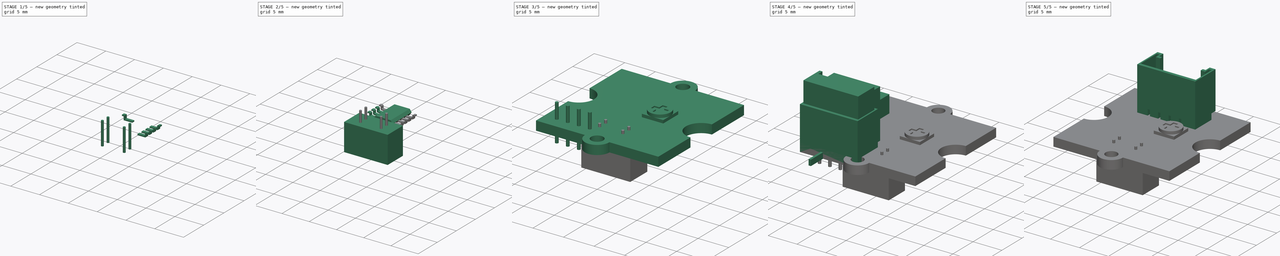
[diagram: build sequence overview — one tinted view per stage of 5, left to right]
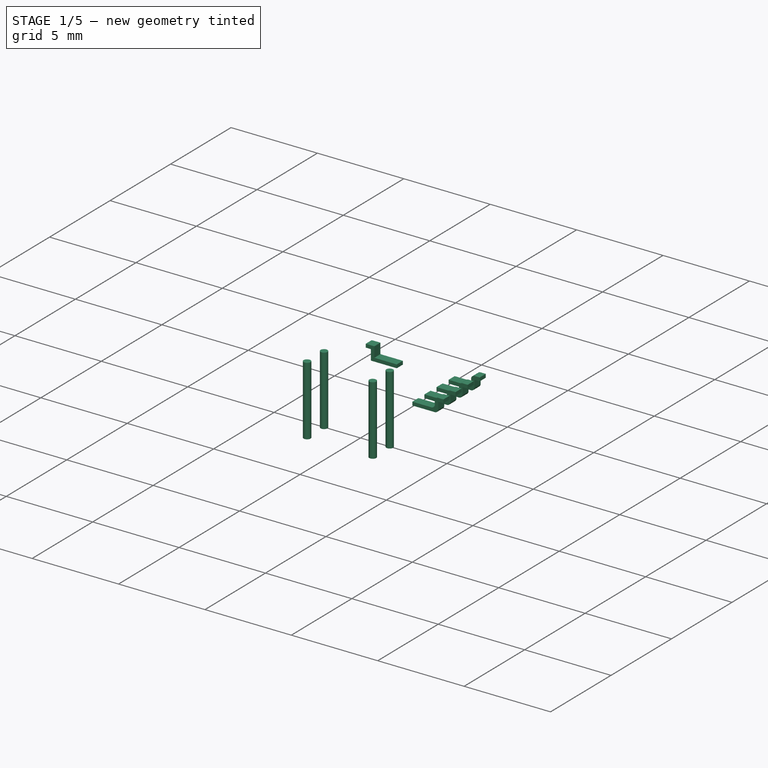
[diagram: stage 1 of 5 — iso view after this stage's code; geometry added in this stage tinted green]
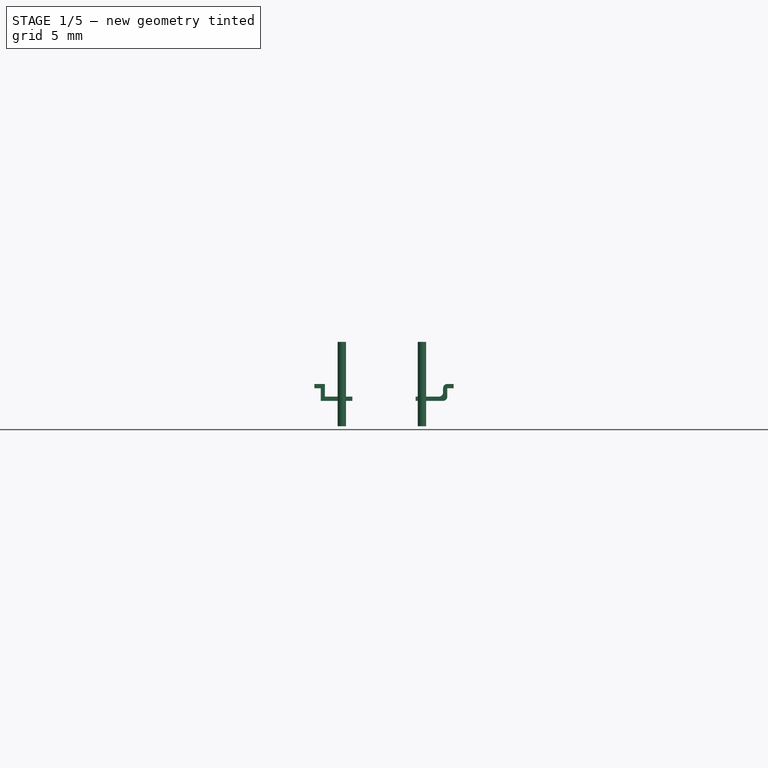
[diagram: stage 1 of 5 — front view after this stage's code; geometry added in this stage tinted green]
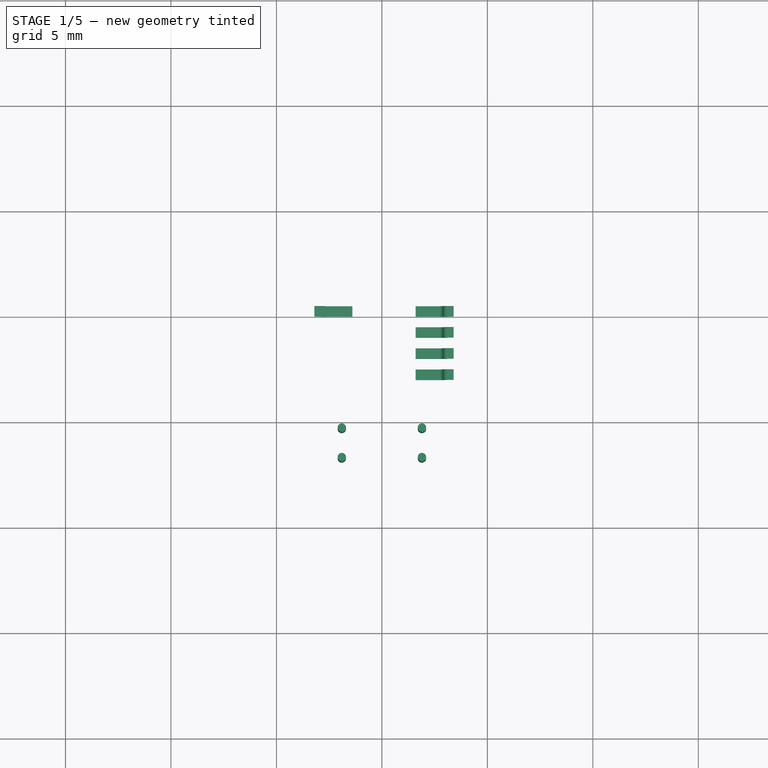
[diagram: stage 1 of 5 — top view after this stage's code; geometry added in this stage tinted green]
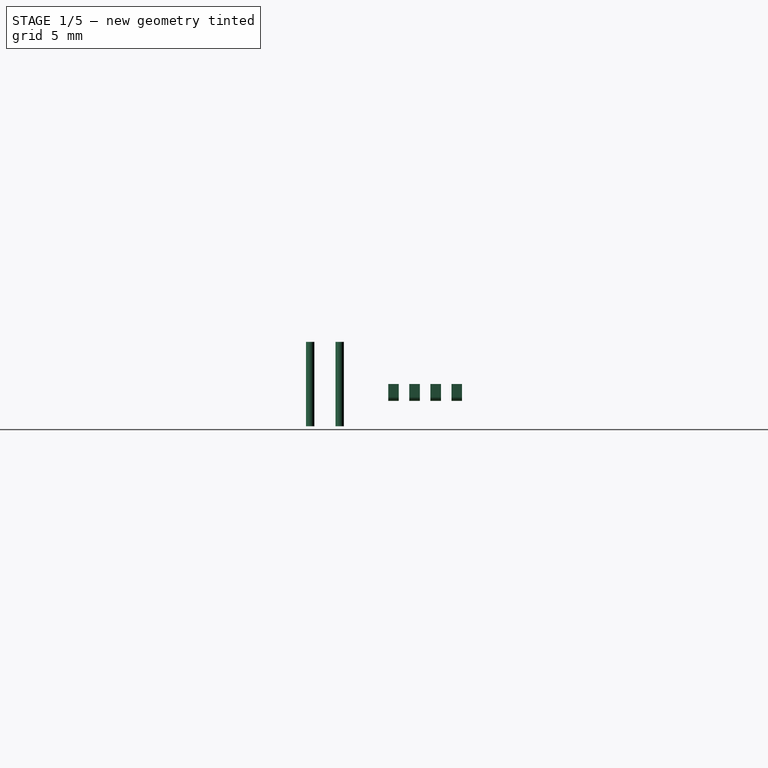
[diagram: stage 1 of 5 — right view after this stage's code; geometry added in this stage tinted green]
FCSTD DOCUMENT  (FreeCAD 0.14R3700 (Git))
Label: LineFinder
License: CC-BY 3.0
LicenseURL: http://creativecommons.org/licenses/by/3.0/
objects: Part::Box×19, Part::Cut×11, Part::Cylinder×7, Sketcher::SketchObject×6, Part::MultiFuse×6, PartDesign::Pad×3, PartDesign::Pocket×3, Part::FeaturePython×3, Part::Sphere×2, Part::Fillet×2
note: 68 computed .brp shape members not serialized (recipe doc carries the construction recipe); baked Part::Feature solids carry a one-line shape summary decoded from their .brp

FEATURE [Part::Box] Box016  label="Cubo016"
  Height = 0.2
  Length = 1.5
  Placement = pos=(7.1,10,-0.8) rot=(0,0,1;0rad)
  Width = 0.5
FEATURE [Part::Box] Box017  label="Cubo017"
  Height = 0.4
  Length = 0.2
  Placement = pos=(7.1,10,-0.6) rot=(0,0,1;0rad)
  Width = 0.5
FEATURE [Part::Box] Box018  label="Cubo018"
  Height = 0.5
  Length = 0.2
  Placement = pos=(6.8,10,0) rot=(0,1,0;1.5708rad)
  Width = 0.5
FEATURE [Part::MultiFuse] Fusion004
  Shapes = -> [Box016,Box017,Box018]
FEATURE [Part::MultiFuse] Fusion005
  Shapes = -> [Box016,Box017,Box018]
FEATURE [Part::Fillet] Fillet001
  Base = -> Fusion005
  Edges = 3 edges r=0.2: [Edge5,Edge8,Edge21]
  Placement = pos=(20.2,20.5,0) rot=(0,0,1;3.14159rad)
FEATURE [Part::FeaturePython] Array002  # Draft array (typed FeaturePython)
  Angle = 360
  ArrayType = 0
  Axis = (0,0,1)
  Base = -> Fillet001
  Center = (0,0,0)
  IntervalX = (1,0,0)
  IntervalY = (0,-1,0)
  IntervalZ = (0,0,1)
  NumberPolar = 1
  NumberX = 1
  NumberY = 4
  NumberZ = 1
FEATURE [Part::Cylinder] Cylinder003  label="Cilindro003"
  Angle = 360
  Height = 4
  Placement = pos=(8.1,4.7,-2) rot=(0,0,1;0rad)
  Radius = 0.2
FEATURE [Part::Cylinder] Cylinder004  label="Cilindro004"
  Angle = 360
  Height = 4
  Placement = pos=(11.9,4.7,-2) rot=(0,0,1;0rad)
  Radius = 0.2
FEATURE [Part::Cylinder] Cylinder005  label="Cilindro005"
  Angle = 360
  Height = 4
  Placement = pos=(8.1,3.3,-2) rot=(0,0,1;0rad)
  Radius = 0.2
FEATURE [Part::Cylinder] Cylinder006  label="Cilindro006"
  Angle = 360
  Height = 4
  Placement = pos=(11.9,3.3,-2) rot=(0,0,1;0rad)
  Radius = 0.2
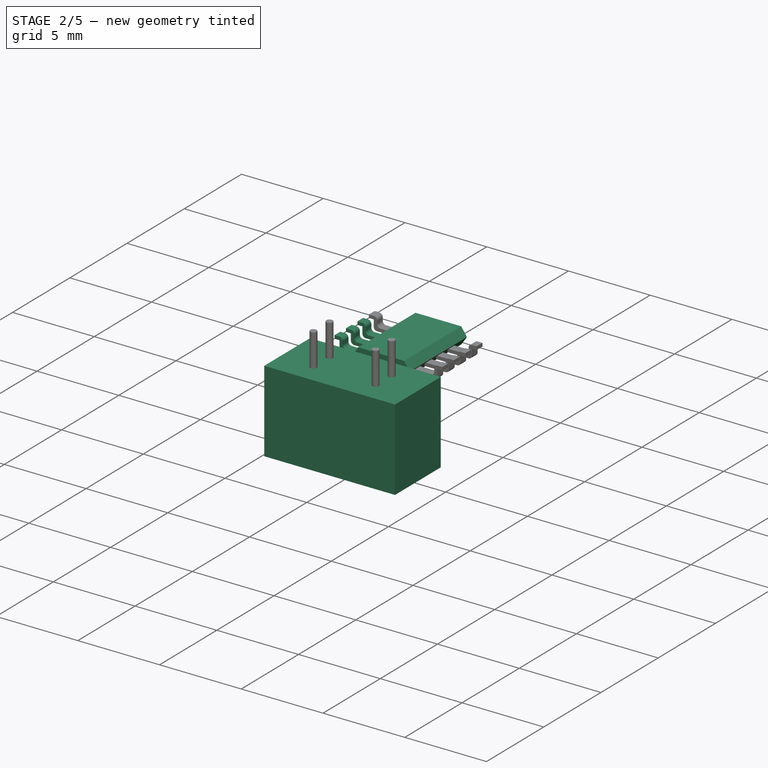
[diagram: stage 2 of 5 — iso view after this stage's code; geometry added in this stage tinted green]
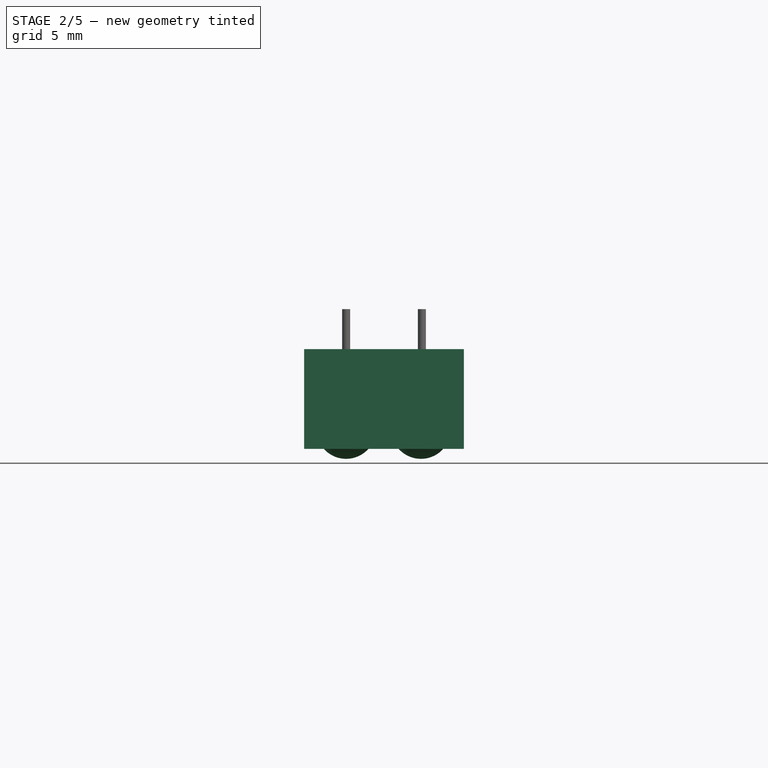
[diagram: stage 2 of 5 — front view after this stage's code; geometry added in this stage tinted green]
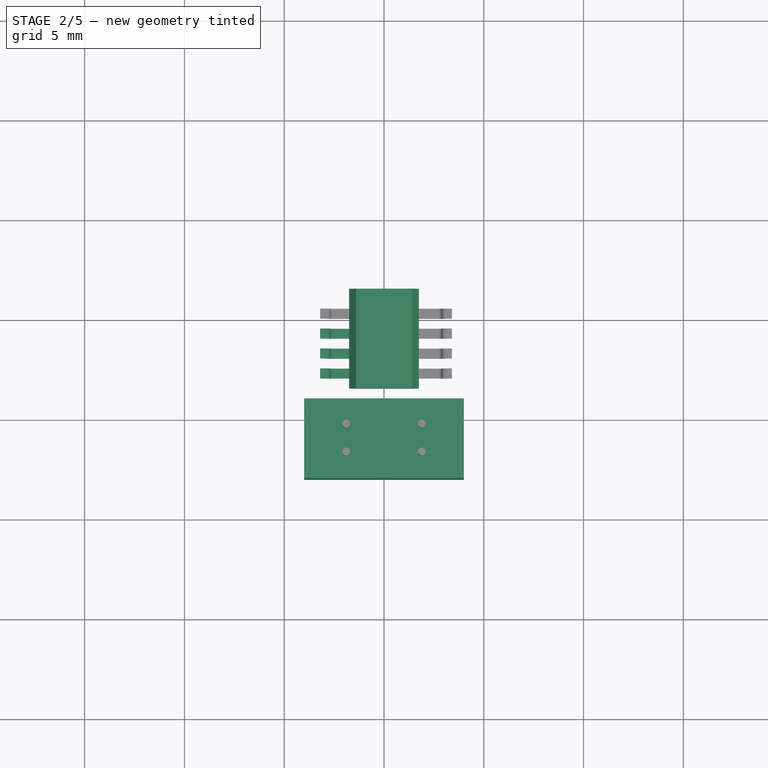
[diagram: stage 2 of 5 — top view after this stage's code; geometry added in this stage tinted green]
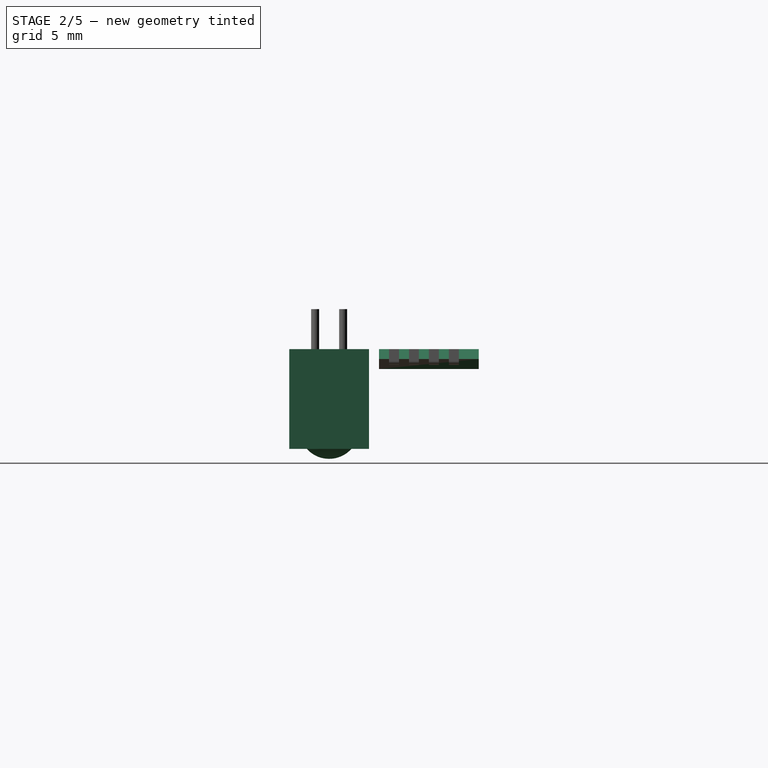
[diagram: stage 2 of 5 — right view after this stage's code; geometry added in this stage tinted green]
FEATURE [Part::Box] Box013  label="Cubo013"
  Height = 5
  Length = 8
  Placement = pos=(6,2,-5) rot=(0,0,1;0rad)
  Width = 4
FEATURE [Part::Box] Box014  label="Cubo014"
  Height = 4
  Length = 3.25
  Placement = pos=(6.5,2.5,-5) rot=(0,0,1;0rad)
  Width = 3
FEATURE [Part::Sphere] Sphere  label="Esféra"
  Angle1 = -90
  Angle2 = 90
  Angle3 = 360
  Radius = 1.5
FEATURE [Part::Cylinder] Cylinder001  label="Cilindro001"
  Angle = 360
  Height = 2.5
  Radius = 1.5
FEATURE [Part::MultiFuse] Fusion002  label="LED IR"
  Placement = pos=(8.1,4,-4) rot=(0,0,1;0rad)
  Shapes = -> [Sphere,Cylinder001]
FEATURE [Part::Cylinder] Cylinder002  label="Cilindro002"
  Angle = 360
  Height = 2.5
  Radius = 1.5
FEATURE [Part::Sphere] Sphere001  label="Esféra001"
  Angle1 = -90
  Angle2 = 90
  Angle3 = 360
  Radius = 1.5
FEATURE [Part::MultiFuse] Fusion003  label="IR PHOTO"
  Placement = pos=(11.85,4,-4) rot=(0,0,1;0rad)
  Shapes = -> [Sphere001,Cylinder002]
FEATURE [Sketcher::SketchObject] Sketch005
  Placement = pos=(8.25,11.5,-0.5) rot=(1,0,0;1.5708rad)
  sketch-geometry (8):
    g0: LineSegment StartX=0 StartY=0 StartZ=0 EndX=3.5 EndY=0 EndZ=0
    g1: LineSegment StartX=3.5 StartY=0 StartZ=0 EndX=3.15 EndY=0.5 EndZ=0
    g2: LineSegment StartX=3.15 StartY=0.5 StartZ=0 EndX=0.35 EndY=0.5 EndZ=0
    g3: LineSegment StartX=0.35 StartY=0.5 StartZ=0 EndX=0 EndY=0 EndZ=0
    g4: LineSegment [constr] StartX=0.35 StartY=0.5 StartZ=0 EndX=0.35 EndY=0 EndZ=0
    g5: LineSegment StartX=0 StartY=0 StartZ=0 EndX=0.35 EndY=-0.5 EndZ=0
    g6: LineSegment StartX=0.35 StartY=-0.5 StartZ=0 EndX=3.15 EndY=-0.5 EndZ=0
    g7: LineSegment StartX=3.15 StartY=-0.5 StartZ=0 EndX=3.5 EndY=0 EndZ=0
  constraints (22):
    c: Coincident(g-1,g0)
    c: Horizontal(g0)
    c: Coincident(g0,g1)
    c: Coincident(g1,g2)
    c: Horizontal(g2)
    c: Coincident(g2,g3)
    c: Coincident(g3,g-1)
    c: DistanceX(g2) = -2.8
    c: DistanceX(g0) = 3.5
    c: Coincident(g4,g2)
    c: PointOnObject(g4,g0)
    c: Vertical(g4)
    c: DistanceY(g4) = -0.5
    c: Equal(g3,g1)
    c: Coincident(g-1,g5)
    c: Coincident(g5,g6)
    c: Horizontal(g6)
    c: Coincident(g6,g7)
    c: Coincident(g7,g0)
    c: Equal(g6,g2)
    c: Equal(g7,g5)
    c: Equal(g5,g3)
FEATURE [PartDesign::Pad] Pad002
  Length = 5
  Length2 = 100
  Placement = pos=(8.25,11.5,-0.5) rot=(1,0,0;1.5708rad)
  Sketch = -> Sketch005
  Type = 0
FEATURE [Part::Fillet] Fillet
  Base = -> Fusion004
  Edges = 3 edges r=0.2: [Edge5,Edge8,Edge21]
FEATURE [Part::FeaturePython] Array001  # Draft array (typed FeaturePython)
  Angle = 360
  ArrayType = 0
  Axis = (0,0,1)
  Base = -> Fillet
  Center = (0,0,0)
  IntervalX = (5,0,0)
  IntervalY = (0,-1,0)
  IntervalZ = (0,0,1)
  NumberPolar = 1
  NumberX = 1
  NumberY = 4
  NumberZ = 1
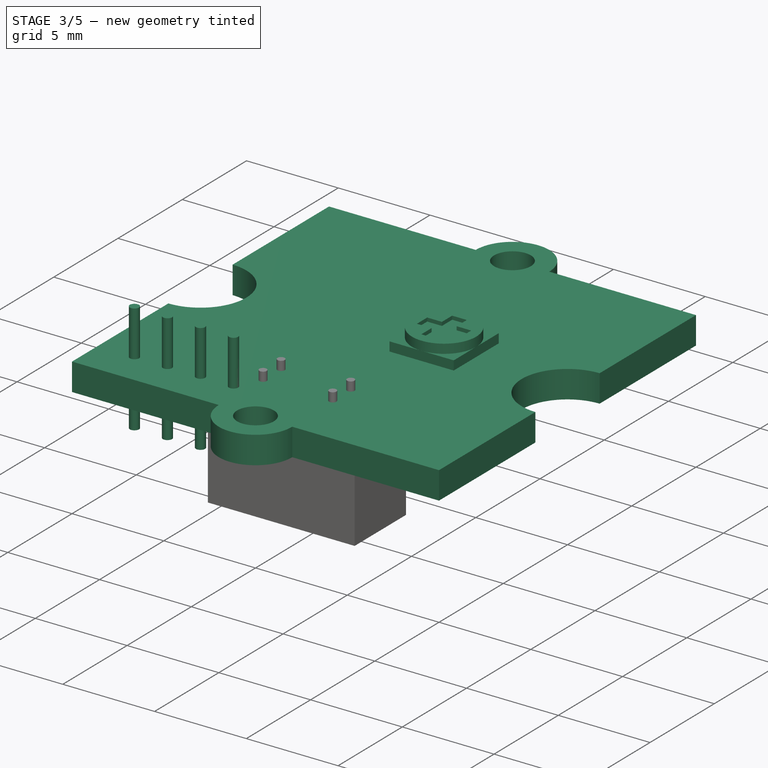
[diagram: stage 3 of 5 — iso view after this stage's code; geometry added in this stage tinted green]
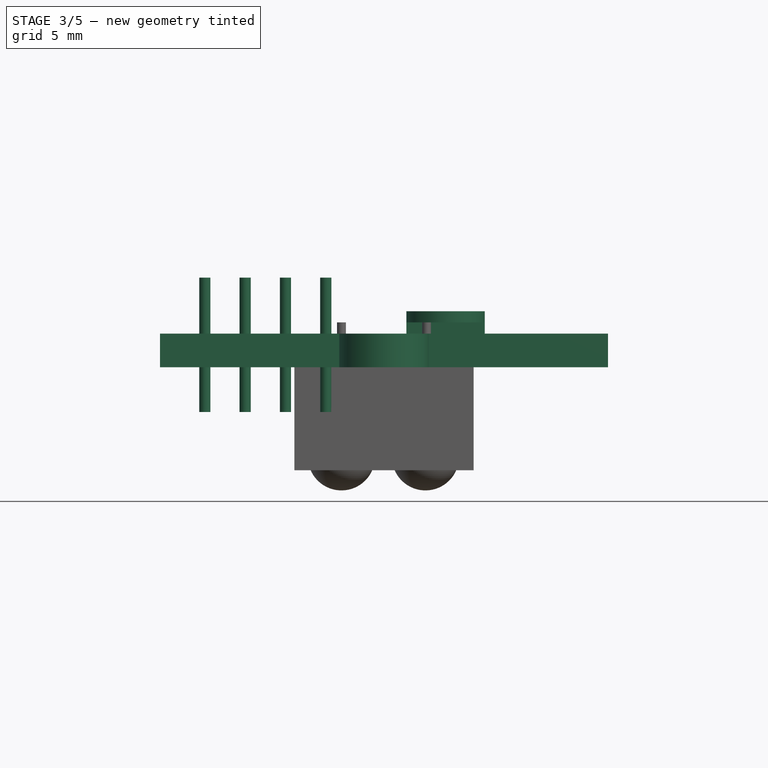
[diagram: stage 3 of 5 — front view after this stage's code; geometry added in this stage tinted green]
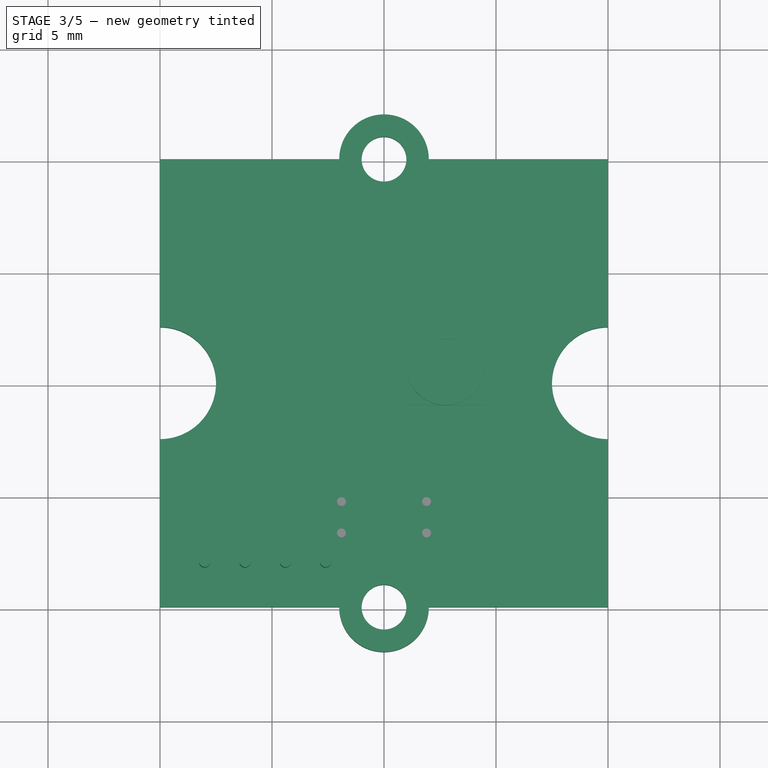
[diagram: stage 3 of 5 — top view after this stage's code; geometry added in this stage tinted green]
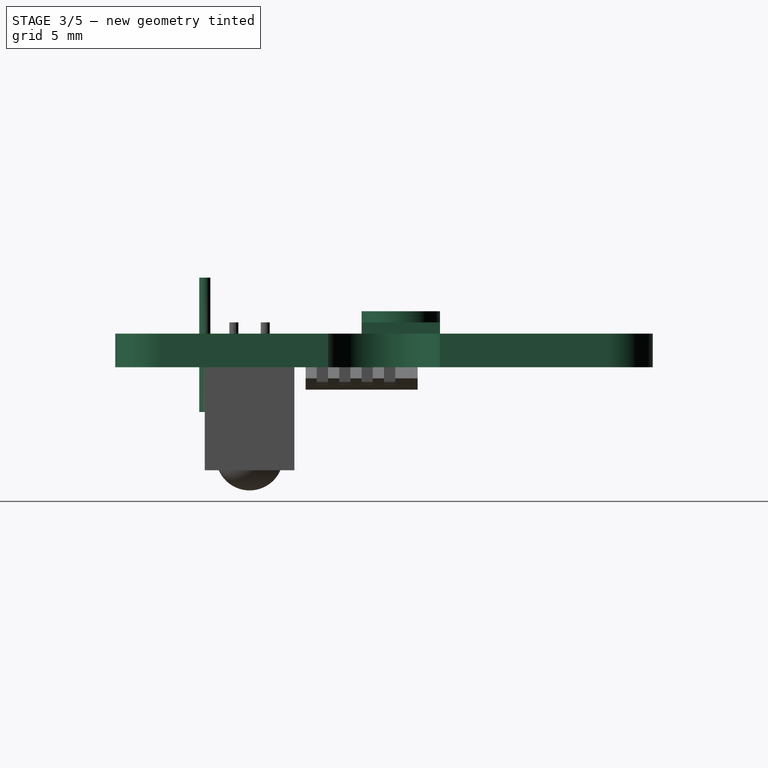
[diagram: stage 3 of 5 — right view after this stage's code; geometry added in this stage tinted green]
FEATURE [Part::Box] Box  label="Cubo"
  Height = 1.5
  Length = 20
  Width = 20
FEATURE [Sketcher::SketchObject] Sketch
  ExternalGeometry = -> [Box]
  Placement = pos=(0,0,1.5) rot=(0,0,1;0rad)
  Support = -> Box [Face6]
  sketch-geometry (2):
    g0: Circle CenterX=10 CenterY=20 CenterZ=0 NormalX=0 NormalY=0 NormalZ=1 Radius=2
    g1: Circle CenterX=10 CenterY=0 CenterZ=0 NormalX=0 NormalY=0 NormalZ=1 Radius=2
  constraints (6):
    c: PointOnObject(g0,g-3)
    c: PointOnObject(g1,g-1)
    c: Radius(g0) = 2
    c: Radius(g1) = 2
    c: DistanceX(g0,g-3) = -10
    c: DistanceX(g-1,g1) = 10
FEATURE [PartDesign::Pad] Pad
  Length = 1.5
  Length2 = 100
  Reversed = true
  Sketch = -> Sketch
  Type = 0
FEATURE [Sketcher::SketchObject] Sketch001
  ExternalGeometry = -> [Pad]
  Placement = pos=(0,0,1.5) rot=(0,0,1;0rad)
  Support = -> Pad [Face9]
  sketch-geometry (2):
    g0: Circle CenterX=10 CenterY=20 CenterZ=0 NormalX=0 NormalY=0 NormalZ=1 Radius=1
    g1: Circle CenterX=10 CenterY=0 CenterZ=0 NormalX=0 NormalY=0 NormalZ=1 Radius=1
  constraints (6):
    c: PointOnObject(g0,g-3)
    c: PointOnObject(g1,g-1)
    c: Equal(g0,g1)
    c: Radius(g0) = 1
    c: DistanceX(g0,g-3) = -10
    c: DistanceX(g-1,g1) = 10
FEATURE [PartDesign::Pocket] Pocket
  Length = 5
  Sketch = -> Sketch001
  Type = 0
FEATURE [Part::Cylinder] Cylinder  label="Cilindro"
  Angle = 360
  Height = 6
  Placement = pos=(2,2,-2) rot=(0,0,1;0rad)
  Radius = 0.25
FEATURE [Part::FeaturePython] Array  # Draft array (typed FeaturePython)
  Angle = 360
  ArrayType = 0
  Axis = (0,0,1)
  Base = -> Cylinder
  Center = (0,0,0)
  IntervalX = (1.8,0,0)
  IntervalY = (0,1,0)
  IntervalZ = (0,0,1)
  NumberPolar = 1
  NumberX = 4
  NumberY = 1
  NumberZ = 1
FEATURE [Sketcher::SketchObject] Sketch002
  ExternalGeometry = -> [Pocket]
  Placement = pos=(0,0,1.5) rot=(0,0,1;0rad)
  Support = -> Pocket [Face4]
  sketch-geometry (2):
    g0: Circle CenterX=0 CenterY=10 CenterZ=0 NormalX=0 NormalY=0 NormalZ=1 Radius=2.5
    g1: Circle CenterX=20 CenterY=10 CenterZ=0 NormalX=0 NormalY=0 NormalZ=1 Radius=2.5
  constraints (6):
    c: PointOnObject(g0,g-2)
    c: PointOnObject(g1,g-3)
    c: Equal(g1,g0)
    c: DistanceY(g-1,g0) = 10
    c: DistanceY(g1,g-3) = -10
    c: Radius(g0) = 2.5
FEATURE [PartDesign::Pocket] Pocket001  label="base"
  Length = 5
  Sketch = -> Sketch002
  Type = 0
FEATURE [Part::Box] Box012  label="Cubo012"
  Height = 0.5
  Length = 3.5
  Placement = pos=(11,9,1.5) rot=(0,0,1;0rad)
  Width = 3.5
FEATURE [Sketcher::SketchObject] Sketch003
  Placement = pos=(11,9,2) rot=(0,0,1;0rad)
  Support = -> Box012 [Face6]
  sketch-geometry (1):
    g0: Circle CenterX=1.75 CenterY=1.75 CenterZ=0 NormalX=0 NormalY=0 NormalZ=1 Radius=1.75
  constraints (3):
    c: DistanceX(g-1,g0) = 1.75
    c: DistanceY(g-1,g0) = 1.75
    c: Radius(g0) = 1.75
FEATURE [PartDesign::Pad] Pad001
  Length = 0.5
  Length2 = 100
  Placement = pos=(11,9,1.5) rot=(0,0,1;0rad)
  Sketch = -> Sketch003
  Type = 0
FEATURE [Sketcher::SketchObject] Sketch004
  Placement = pos=(11,9,2.5) rot=(0,0,1;0rad)
  Support = -> Pad001 [Face11]
  sketch-geometry (14):
    g0: LineSegment StartX=2.15 StartY=2.95 StartZ=0 EndX=1.35 EndY=2.95 EndZ=0
    g1: LineSegment StartX=1.35 StartY=2.95 StartZ=0 EndX=1.35 EndY=2.15 EndZ=0
    g2: LineSegment StartX=1.35 StartY=2.15 StartZ=0 EndX=0.55 EndY=2.15 EndZ=0
    g3: LineSegment StartX=0.55 StartY=2.15 StartZ=0 EndX=0.55 EndY=1.35 EndZ=0
    g4: LineSegment StartX=0.55 StartY=1.35 StartZ=0 EndX=1.35 EndY=1.35 EndZ=0
    g5: LineSegment StartX=1.35 StartY=1.35 StartZ=0 EndX=1.35 EndY=0.55 EndZ=0
    g6: LineSegment StartX=1.35 StartY=0.55 StartZ=0 EndX=2.15 EndY=0.55 EndZ=0
    g7: LineSegment StartX=2.15 StartY=0.55 StartZ=0 EndX=2.15 EndY=1.35 EndZ=0
    g8: LineSegment StartX=2.15 StartY=1.35 StartZ=0 EndX=2.95 EndY=1.35 EndZ=0
    g9: LineSegment StartX=2.95 StartY=1.35 StartZ=0 EndX=2.95 EndY=2.15 EndZ=0
    g10: LineSegment StartX=2.95 StartY=2.15 StartZ=0 EndX=2.15 EndY=2.15 EndZ=0
    g11: LineSegment StartX=2.15 StartY=2.15 StartZ=0 EndX=2.15 EndY=2.95 EndZ=0
    g12: LineSegment [constr] StartX=1.75 StartY=2.95 StartZ=0 EndX=1.75 EndY=0.55 EndZ=0
    g13: LineSegment [constr] StartX=0.55 StartY=1.75 StartZ=0 EndX=2.95 EndY=1.75 EndZ=0
  constraints (45):
    c: Horizontal(g0)
    c: Coincident(g0,g1)
    c: Vertical(g1)
    c: Coincident(g1,g2)
    c: Horizontal(g2)
    c: Coincident(g2,g3)
    c: Vertical(g3)
    c: Coincident(g3,g4)
    c: Coincident(g4,g5)
    c: Vertical(g5)
    c: Coincident(g5,g6)
    c: Horizontal(g6)
    c: Coincident(g6,g7)
    c: Vertical(g7)
    c: Coincident(g7,g8)
    c: Horizontal(g8)
    c: Coincident(g8,g9)
    c: Vertical(g9)
    c: Coincident(g9,g10)
    c: Coincident(g10,g11)
    c: Coincident(g11,g0)
    c: Vertical(g11)
    c: Equal(g0,g3)
    c: Equal(g3,g9)
    c: Equal(g9,g6)
    c: Equal(g1,g11)
    c: Equal(g11,g10)
    c: Equal(g10,g8)
    c: Equal(g8,g7)
    c: Equal(g7,g5)
    c: Equal(g5,g4)
    c: Equal(g4,g2)
    c: Horizontal(g10)
    c: DistanceX(g0) = -0.8
    c: PointOnObject(g12,g0)
    c: PointOnObject(g12,g6)
    c: Vertical(g12)
    c: Symmetric(g0,g0,g12)
    c: PointOnObject(g13,g3)
    c: PointOnObject(g13,g9)
    c: Horizontal(g13)
    c: Symmetric(g9,g8,g13)
    c: DistanceX(g10) = -0.8
    c: DistanceX(g-1,g13) = 0.55
    c: DistanceY(g-1,g5) = 0.55
FEATURE [PartDesign::Pocket] Pocket002  label="tornillo"
  Length = 0.2
  Placement = pos=(11,9,1.5) rot=(0,0,1;0rad)
  Sketch = -> Sketch004
  Type = 0
FEATURE [Part::Box] Box015  label="Cubo015"
  Height = 4
  Length = 3.25
  Placement = pos=(10.25,2.5,-5) rot=(0,0,1;0rad)
  Width = 3
FEATURE [Part::Cut] Cut009
  Base = -> Box013
  Tool = -> Box014
FEATURE [Part::Cut] Cut010  label="LT-H"
  Base = -> Cut009
  Placement = pos=(0,0,0.4) rot=(0,0,1;0rad)
  Tool = -> Box015
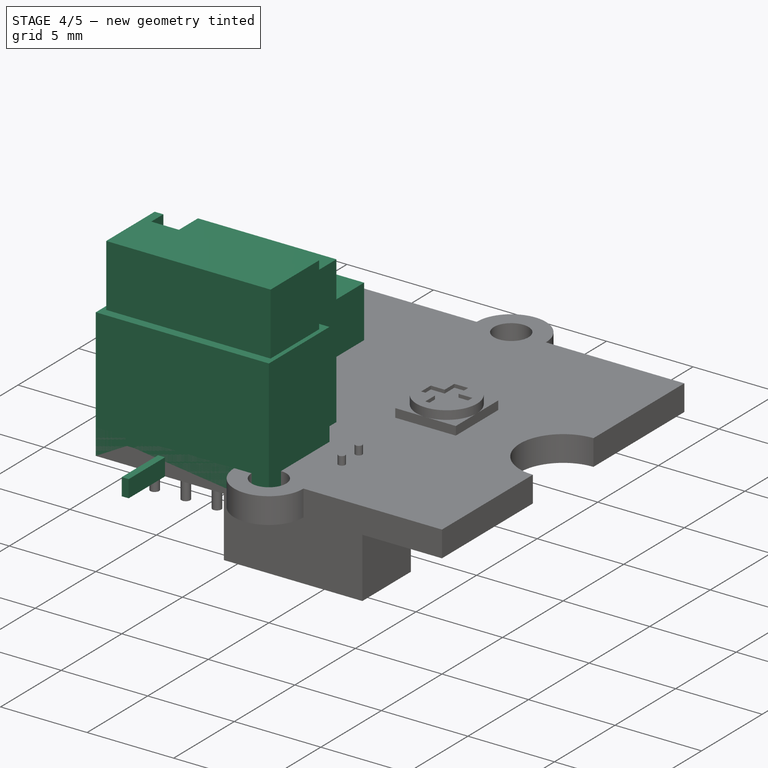
[diagram: stage 4 of 5 — iso view after this stage's code; geometry added in this stage tinted green]
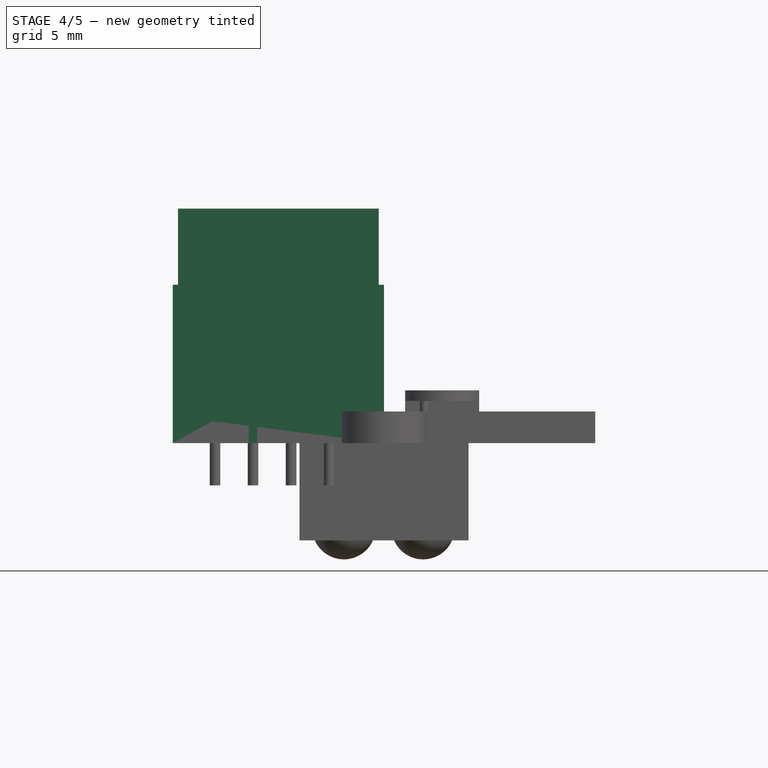
[diagram: stage 4 of 5 — front view after this stage's code; geometry added in this stage tinted green]
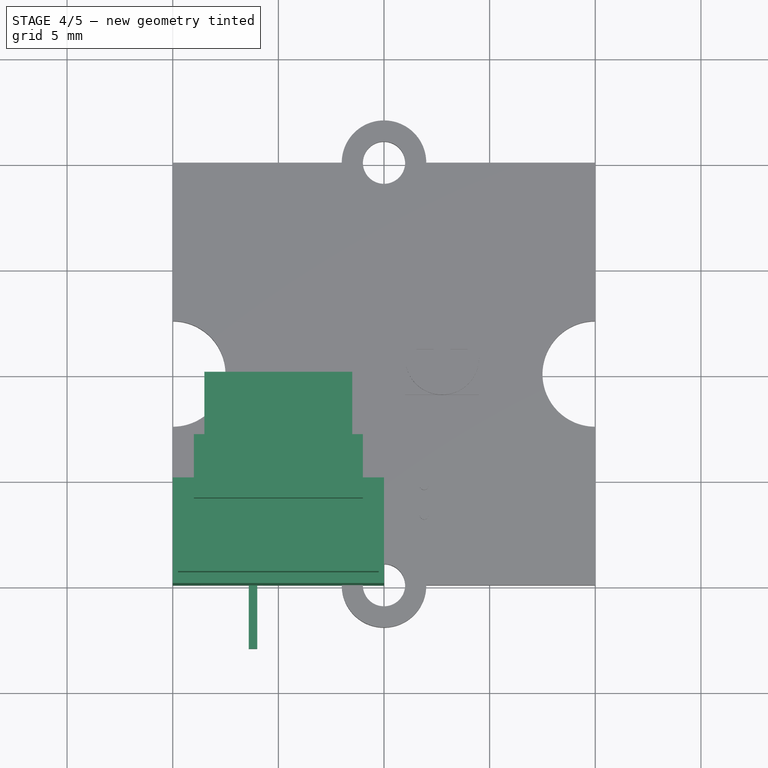
[diagram: stage 4 of 5 — top view after this stage's code; geometry added in this stage tinted green]
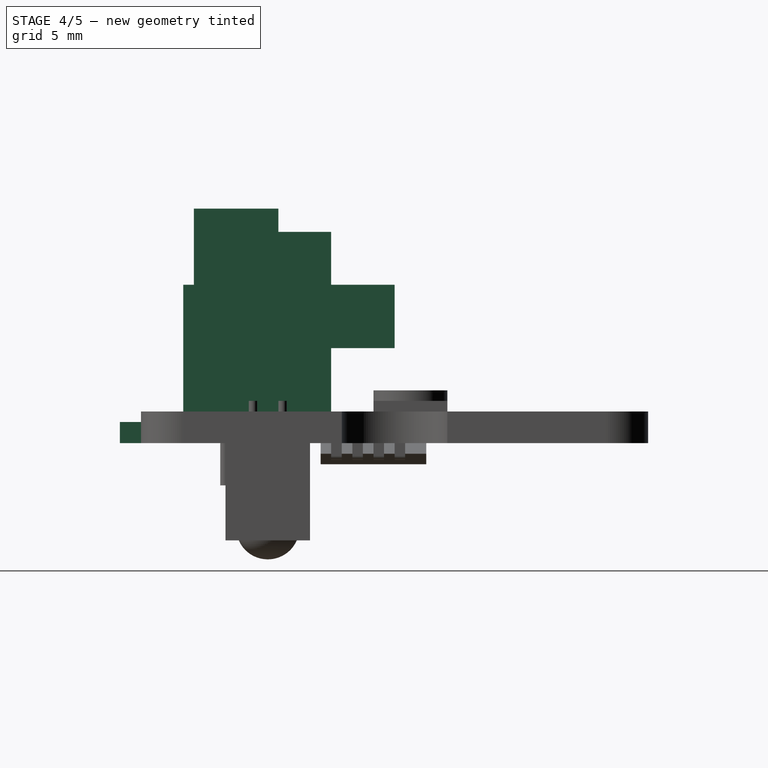
[diagram: stage 4 of 5 — right view after this stage's code; geometry added in this stage tinted green]
FEATURE [Part::Box] Box001  label="Cubo001"
  Height = 1
  Length = 10
  Width = 4
FEATURE [Part::Box] Box002  label="Cubo002"
  Height = 6.5
  Length = 10
  Placement = pos=(0,0,1) rot=(0,0,1;0rad)
  Width = 5
FEATURE [Part::MultiFuse] Fusion
  Shapes = -> [Box001,Box002]
FEATURE [Part::Box] Box003  label="Cubo003"
  Height = 1
  Length = 0.4
  Placement = pos=(1.8,-3,0) rot=(0,0,1;0rad)
  Width = 10
FEATURE [Part::Cut] Cut
  Base = -> Fusion
  Tool = -> Box003
FEATURE [Part::Box] Box004  label="Cubo004"
  Height = 1
  Length = 0.4
  Placement = pos=(3.6,-3,0) rot=(0,0,1;0rad)
  Width = 10
FEATURE [Part::Box] Box007  label="Cubo007"
  Height = 10
  Length = 9
  Placement = pos=(0.5,0.5,1.1) rot=(0,0,1;0rad)
  Width = 3
FEATURE [Part::Box] Box008  label="Cubo008"
  Height = 10
  Length = 8
  Placement = pos=(1,4,0) rot=(0,0,1;0rad)
  Width = 3
FEATURE [Part::Box] Box009  label="Cubo009"
  Height = 10
  Length = 0.5
  Placement = pos=(0.25,0.5,1.1) rot=(0,0,1;0rad)
  Width = 4
FEATURE [Part::Box] Box010  label="Cubo010"
  Height = 10
  Length = 0.5
  Placement = pos=(9.25,0.5,1.1) rot=(0,0,1;0rad)
  Width = 4
FEATURE [Part::Box] Box011  label="Cubo011"
  Height = 3
  Length = 7
  Placement = pos=(1.5,3,4.5) rot=(0,0,1;0rad)
  Width = 7
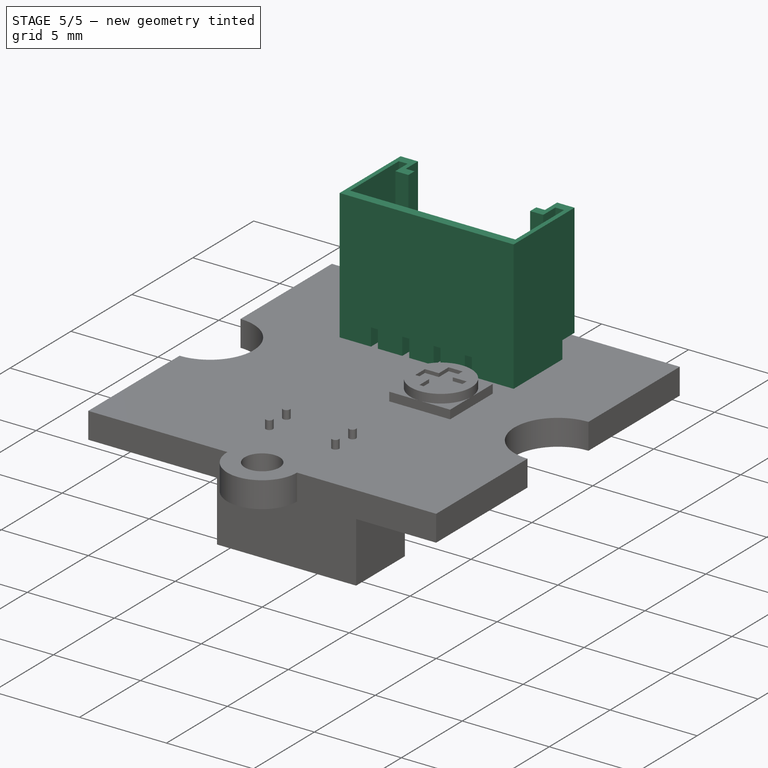
[diagram: stage 5 of 5 — iso view after this stage's code; geometry added in this stage tinted green]
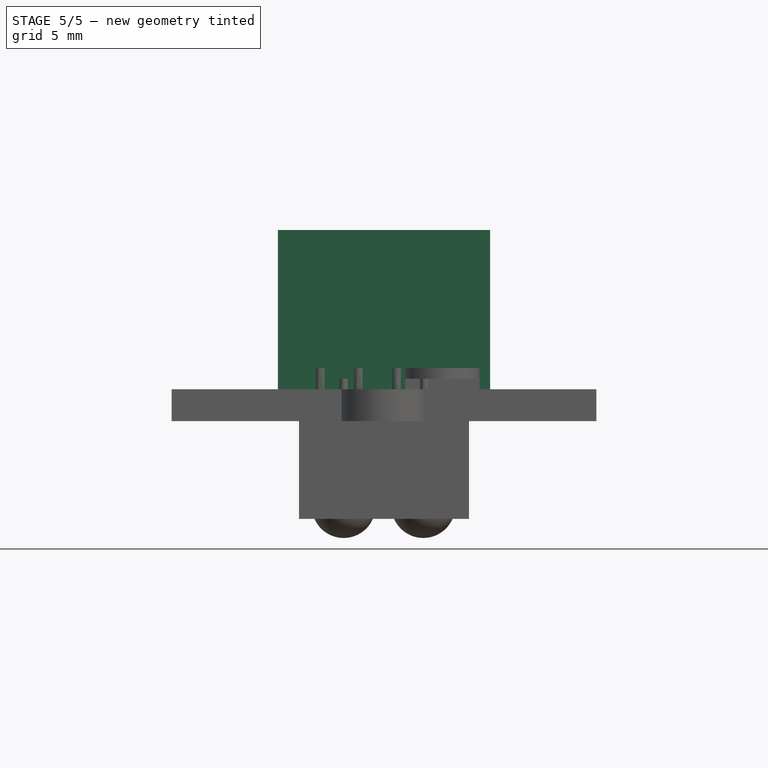
[diagram: stage 5 of 5 — front view after this stage's code; geometry added in this stage tinted green]
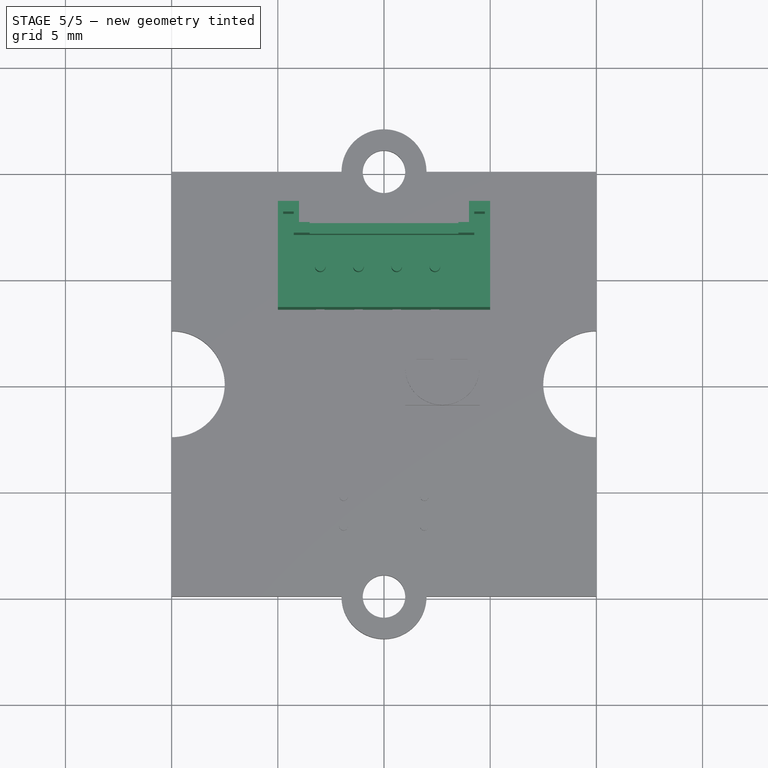
[diagram: stage 5 of 5 — top view after this stage's code; geometry added in this stage tinted green]
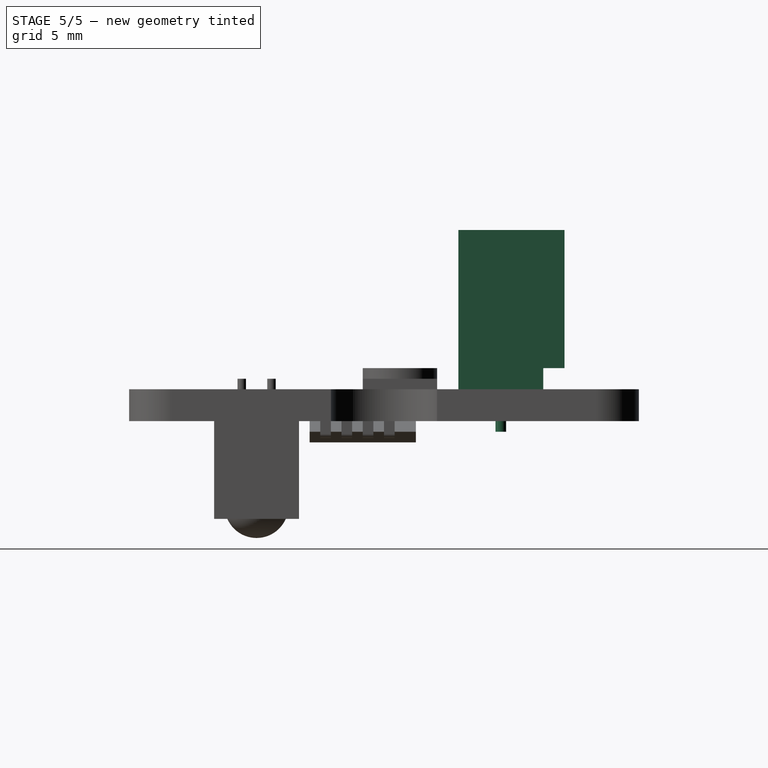
[diagram: stage 5 of 5 — right view after this stage's code; geometry added in this stage tinted green]
FEATURE [Part::Box] Box005  label="Cubo005"
  Height = 1
  Length = 0.4
  Placement = pos=(5.4,-3,0) rot=(0,0,1;0rad)
  Width = 10
FEATURE [Part::Box] Box006  label="Cubo006"
  Height = 1
  Length = 0.4
  Placement = pos=(7.2,-3,0) rot=(0,0,1;0rad)
  Width = 10
FEATURE [Part::Cut] Cut001
  Base = -> Cut
  Tool = -> Box004
FEATURE [Part::Cut] Cut002
  Base = -> Cut001
  Tool = -> Box005
FEATURE [Part::Cut] Cut003
  Base = -> Cut002
  Tool = -> Box006
FEATURE [Part::Cut] Cut004
  Base = -> Cut003
  Tool = -> Box007
FEATURE [Part::Cut] Cut005
  Base = -> Cut004
  Tool = -> Box008
FEATURE [Part::Cut] Cut006
  Base = -> Cut005
  Tool = -> Box009
FEATURE [Part::Cut] Cut007
  Base = -> Cut006
  Tool = -> Box010
FEATURE [Part::Cut] Cut008
  Base = -> Cut007
  Tool = -> Box011
FEATURE [Part::MultiFuse] Fusion001  label="Conector"
  Placement = pos=(5,13.5,1.5) rot=(0,0,1;0rad)
  Shapes = -> [Cut008,Array]
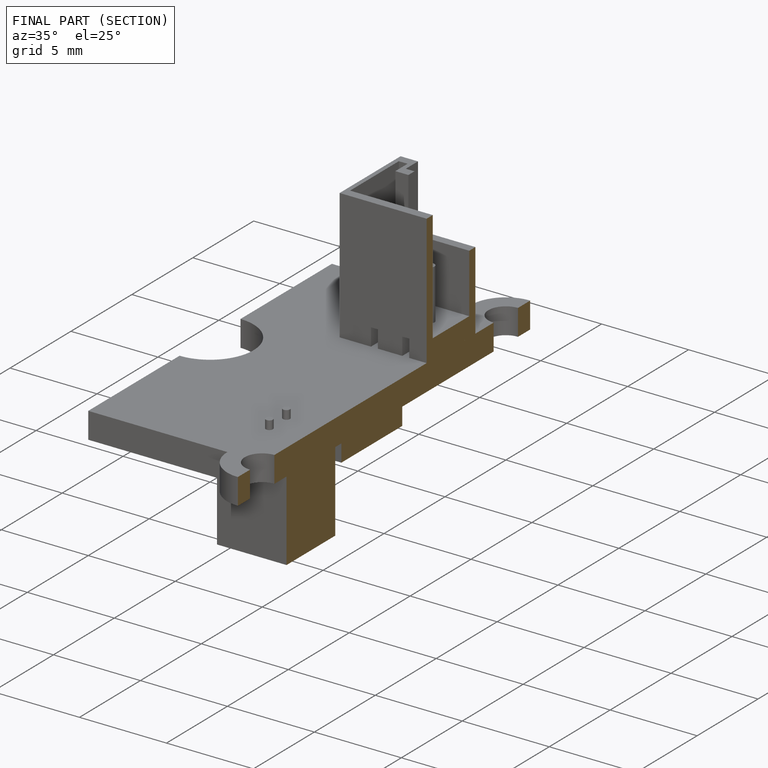
[diagram: finished part — half-section view (interior)]
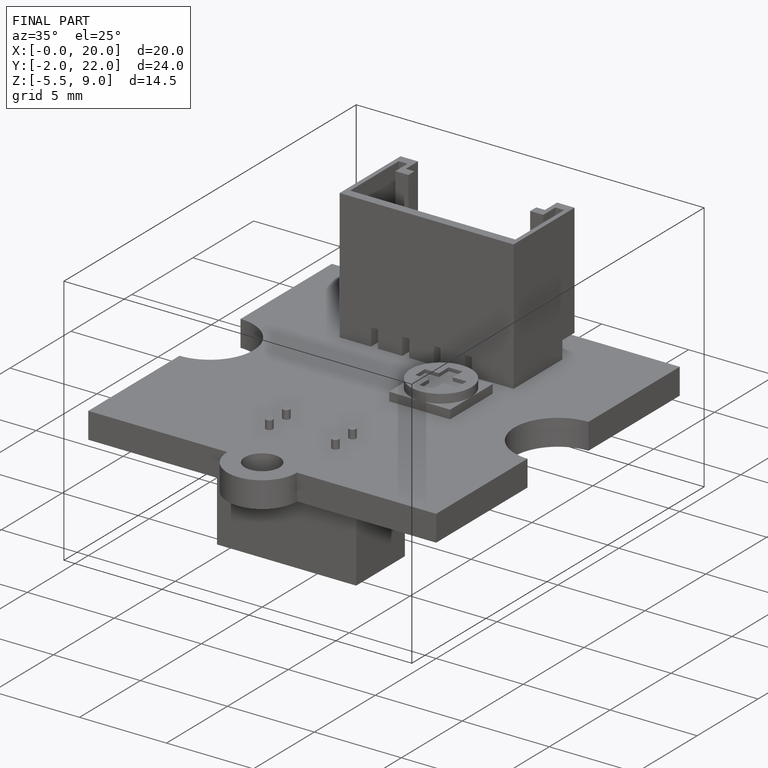
[diagram: finished part — iso view with bounding-box wireframe]
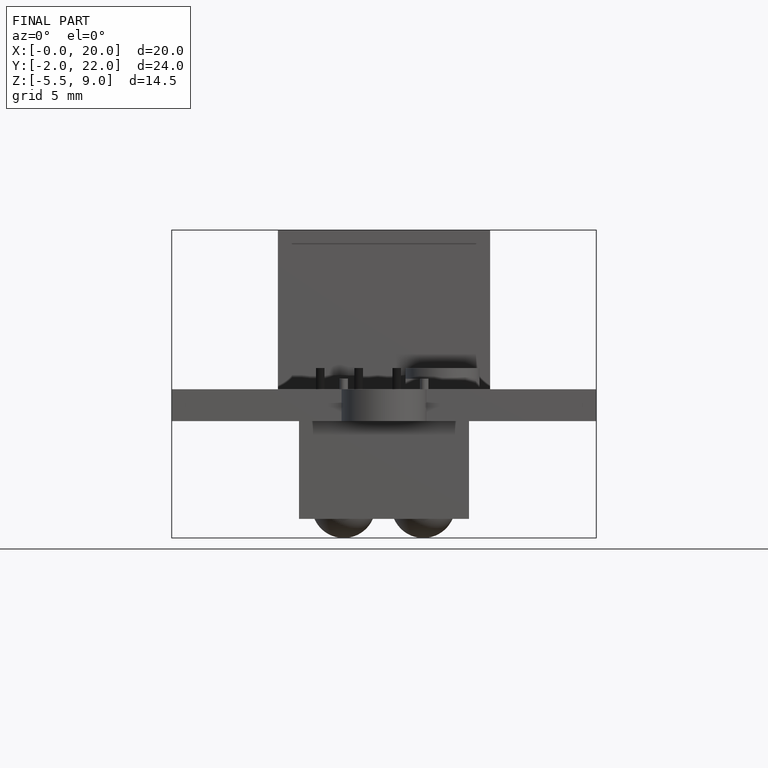
[diagram: finished part — front view with bounding-box wireframe]
